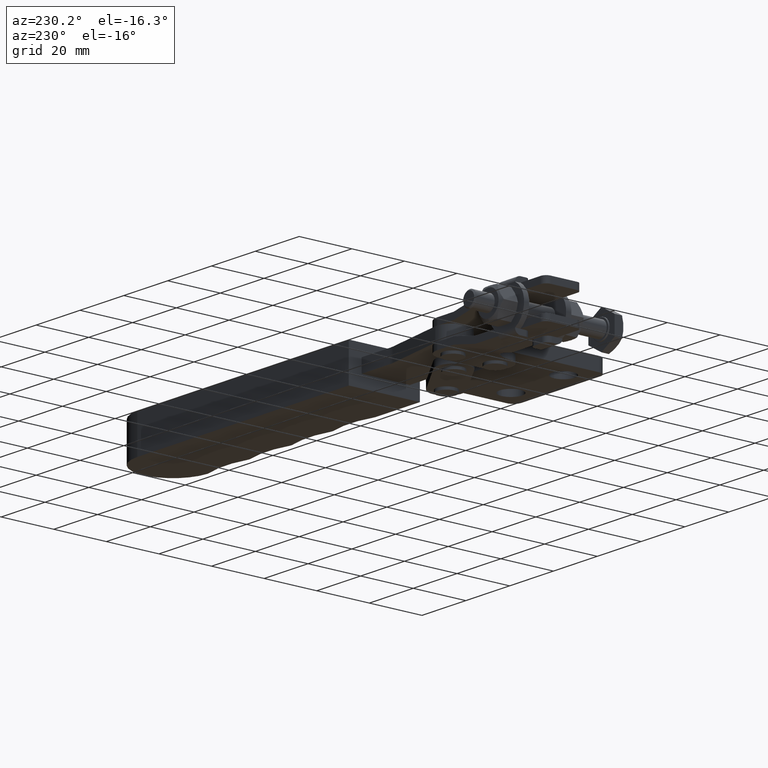
[diagram: clean part render]
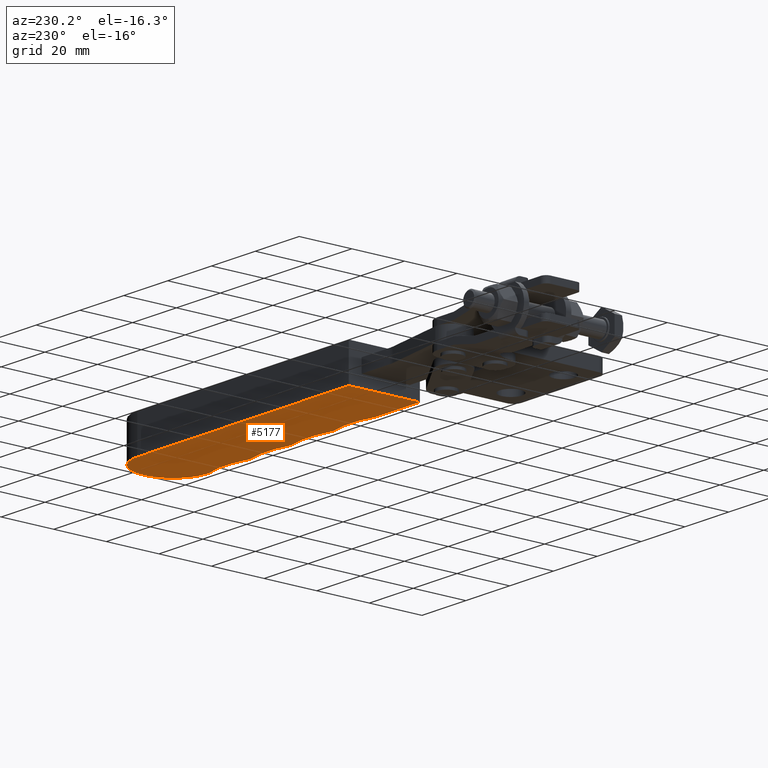
[diagram: same view with one face highlighted and labeled with its STEP entity id]
A machine part, auxiliary view. The second image highlights one B-rep face of the part: STEP entity #5177.
In plain terms, the highlighted planar face has unit normal (0, 0, 1).
Its self-contained STEP definition (entity closure, byte-faithful):
#47 = ORIENTED_EDGE ( 'NONE', *, *, #2918, .F. ) ;
#55 = ORIENTED_EDGE ( 'NONE', *, *, #1030, .F. ) ;
#103 = AXIS2_PLACEMENT_3D ( 'NONE', #3082, #7796, #7760 ) ;
#138 = AXIS2_PLACEMENT_3D ( 'NONE', #6977, #6308, #3063 ) ;
#144 = CARTESIAN_POINT ( 'NONE',  ( 43.17845472933616700, 14.31513059396301900, -7.000000000000000900 ) ) ;
#168 = CARTESIAN_POINT ( 'NONE',  ( 3.576293670548810400, 38.15530636546370900, -7.000000000000000900 ) ) ;
#263 = VERTEX_POINT ( 'NONE', #8348 ) ;
#271 = DIRECTION ( 'NONE',  ( 0.0000000000000000000, 0.0000000000000000000, 1.000000000000000000 ) ) ;
#383 = ORIENTED_EDGE ( 'NONE', *, *, #7321, .F. ) ;
#439 = CARTESIAN_POINT ( 'NONE',  ( 23.72323925246362500, 11.13196959416267600, -7.000000000000000900 ) ) ;
#497 = ORIENTED_EDGE ( 'NONE', *, *, #1561, .F. ) ;
#563 = AXIS2_PLACEMENT_3D ( 'NONE', #3355, #3676, #2658 ) ;
#590 = ORIENTED_EDGE ( 'NONE', *, *, #8298, .F. ) ;
#755 = CARTESIAN_POINT ( 'NONE',  ( 33.76915759846050900, -19.39636785245572200, -7.000000000000000900 ) ) ;
#822 = ORIENTED_EDGE ( 'NONE', *, *, #6570, .F. ) ;
#986 = EDGE_CURVE ( 'NONE', #2364, #2212, #2843, .T. ) ;
#1019 = ORIENTED_EDGE ( 'NONE', *, *, #5981, .F. ) ;
#1030 = EDGE_CURVE ( 'NONE', #1964, #2364, #4534, .T. ) ;
#1085 = DIRECTION ( 'NONE',  ( -0.9999993301781755500, 0.001157429565957367300, -0.0000000000000000000 ) ) ;
#1121 = ORIENTED_EDGE ( 'NONE', *, *, #4166, .F. ) ;
#1151 = AXIS2_PLACEMENT_3D ( 'NONE', #5390, #4047, #2829 ) ;
#1462 = DIRECTION ( 'NONE',  ( 0.9999993301781755500, -0.001157429565958516300, 0.0000000000000000000 ) ) ;
#1470 = DIRECTION ( 'NONE',  ( 0.9999993301781756600, -0.001157429565958478800, 0.0000000000000000000 ) ) ;
#1543 = ORIENTED_EDGE ( 'NONE', *, *, #6925, .F. ) ;
#1561 = EDGE_CURVE ( 'NONE', #7750, #6639, #8624, .T. ) ;
#1651 = ORIENTED_EDGE ( 'NONE', *, *, #986, .F. ) ;
#1669 = DIRECTION ( 'NONE',  ( 0.9999993301781755500, -0.001157429565958496800, 0.0000000000000000000 ) ) ;
#1751 = ORIENTED_EDGE ( 'NONE', *, *, #2453, .F. ) ;
#1799 = CARTESIAN_POINT ( 'NONE',  ( 3.576293670548810400, 38.15530636546370900, -7.000000000000000900 ) ) ;
#1823 = CARTESIAN_POINT ( 'NONE',  ( 81.97824938492850300, 11.37973204418876500, -7.000000000000000900 ) ) ;
#1964 = VERTEX_POINT ( 'NONE', #2402 ) ;
#2077 = AXIS2_PLACEMENT_3D ( 'NONE', #4759, #4788, #1462 ) ;
#2080 = DIRECTION ( 'NONE',  ( 0.9999993301781756600, -0.001157429565958487100, 0.0000000000000000000 ) ) ;
#2163 = ORIENTED_EDGE ( 'NONE', *, *, #7639, .F. ) ;
#2212 = VERTEX_POINT ( 'NONE', #2928 ) ;
#2364 = VERTEX_POINT ( 'NONE', #1823 ) ;
#2390 = DIRECTION ( 'NONE',  ( 0.9999993301781756600, -0.001157429565958547600, 0.0000000000000000000 ) ) ;
#2402 = CARTESIAN_POINT ( 'NONE',  ( 80.37191809346006700, 11.38159126076358200, -7.000000000000000900 ) ) ;
#2453 = EDGE_CURVE ( 'NONE', #263, #5465, #4298, .T. ) ;
#2548 = LINE ( 'NONE', #2607, #7914 ) ;
#2607 = CARTESIAN_POINT ( 'NONE',  ( 23.72323925246362500, 11.13196959416267600, -7.000000000000000900 ) ) ;
#2658 = DIRECTION ( 'NONE',  ( 0.9999993301781756600, -0.001157429565958484500, 0.0000000000000000000 ) ) ;
#2829 = DIRECTION ( 'NONE',  ( 0.9999993301781756600, -0.001157429565958473600, 0.0000000000000000000 ) ) ;
#2840 = ORIENTED_EDGE ( 'NONE', *, *, #6451, .F. ) ;
#2843 = CIRCLE ( 'NONE', #138, 31.99999999999996100 ) ;
#2918 = EDGE_CURVE ( 'NONE', #6639, #8344, #8540, .T. ) ;
#2928 = CARTESIAN_POINT ( 'NONE',  ( 99.73630956887225800, 11.17892842180075500, -7.000000000000000900 ) ) ;
#3011 = CIRCLE ( 'NONE', #5358, 32.00000000000000000 ) ;
#3063 = DIRECTION ( 'NONE',  ( 0.9999993301781756600, -0.001157429565958546100, 0.0000000000000000000 ) ) ;
#3082 = CARTESIAN_POINT ( 'NONE',  ( 71.76913214523121100, -19.44035017596214100, -7.000000000000000900 ) ) ;
#3300 = CARTESIAN_POINT ( 'NONE',  ( 100.2059568025393000, 38.04346426149196200, -7.000000000000000900 ) ) ;
#3355 = CARTESIAN_POINT ( 'NONE',  ( 81.17842927610686800, 14.27114827045659800, -7.000000000000000900 ) ) ;
#3460 = DIRECTION ( 'NONE',  ( 0.9999993301781755500, -0.001157429565958516300, 0.0000000000000000000 ) ) ;
#3504 = DIRECTION ( 'NONE',  ( -0.0000000000000000000, 0.0000000000000000000, -1.000000000000000000 ) ) ;
#3676 = DIRECTION ( 'NONE',  ( 0.0000000000000000000, 0.0000000000000000000, 1.000000000000000000 ) ) ;
#3729 = CARTESIAN_POINT ( 'NONE',  ( 3.576293670548810400, 38.15530636546370900, -7.000000000000000900 ) ) ;
#3750 = DIRECTION ( 'NONE',  ( 0.0000000000000000000, 0.0000000000000000000, 1.000000000000000000 ) ) ;
#3758 = VERTEX_POINT ( 'NONE', #7205 ) ;
#4023 = AXIS2_PLACEMENT_3D ( 'NONE', #5966, #6903, #6177 ) ;
#4047 = DIRECTION ( 'NONE',  ( 0.0000000000000000000, 0.0000000000000000000, 1.000000000000000000 ) ) ;
#4051 = CIRCLE ( 'NONE', #8512, 13.50000000000013500 ) ;
#4112 = CIRCLE ( 'NONE', #7221, 3.000000000000055500 ) ;
#4139 = CARTESIAN_POINT ( 'NONE',  ( 100.1903315033988700, 24.54347330408646100, -7.000000000000000900 ) ) ;
#4166 = EDGE_CURVE ( 'NONE', #7228, #7750, #2548, .T. ) ;
#4218 = LINE ( 'NONE', #168, #8607 ) ;
#4298 = CIRCLE ( 'NONE', #1151, 3.000000000000090200 ) ;
#4307 = VERTEX_POINT ( 'NONE', #5343 ) ;
#4534 = CIRCLE ( 'NONE', #563, 3.000000000000062200 ) ;
#4562 = DIRECTION ( 'NONE',  ( 0.9999993301781756600, -0.001157429565958544500, 0.0000000000000000000 ) ) ;
#4759 = CARTESIAN_POINT ( 'NONE',  ( 71.76913214523121100, -19.44035017596214100, -7.000000000000000900 ) ) ;
#4788 = DIRECTION ( 'NONE',  ( 0.0000000000000000000, 0.0000000000000000000, 1.000000000000000000 ) ) ;
#4996 = FACE_OUTER_BOUND ( 'NONE', #7503, .T. ) ;
#5155 = CARTESIAN_POINT ( 'NONE',  ( 23.72671154116149900, 14.13196758469720600, -7.000000000000000900 ) ) ;
#5177 = ADVANCED_FACE ( 'NONE', ( #4996 ), #8106, .F. ) ;
#5315 = CARTESIAN_POINT ( 'NONE',  ( 24.58749263178653500, 11.25811026151241600, -7.000000000000000900 ) ) ;
#5343 = CARTESIAN_POINT ( 'NONE',  ( 100.7187293448377700, 11.05381816686496200, -7.000000000000000900 ) ) ;
#5358 = AXIS2_PLACEMENT_3D ( 'NONE', #7354, #3504, #4562 ) ;
#5390 = CARTESIAN_POINT ( 'NONE',  ( 62.17835731220214500, 14.21996827324658200, -7.000000000000000900 ) ) ;
#5465 = VERTEX_POINT ( 'NONE', #8311 ) ;
#5966 = CARTESIAN_POINT ( 'NONE',  ( 100.6013076022957300, 14.05151930846985500, -7.000000000000000900 ) ) ;
#5981 = EDGE_CURVE ( 'NONE', #2212, #4307, #8501, .T. ) ;
#6177 = DIRECTION ( 'NONE',  ( 0.9999993301781756600, -0.001157429565958452200, 0.0000000000000000000 ) ) ;
#6179 = VECTOR ( 'NONE', #1085, 1000.000000000000100 ) ;
#6284 = LINE ( 'NONE', #3729, #6179 ) ;
#6308 = DIRECTION ( 'NONE',  ( -0.0000000000000000000, 0.0000000000000000000, -1.000000000000000000 ) ) ;
#6451 = EDGE_CURVE ( 'NONE', #8068, #7228, #4218, .T. ) ;
#6554 = AXIS2_PLACEMENT_3D ( 'NONE', #5155, #8213, #1470 ) ;
#6570 = EDGE_CURVE ( 'NONE', #4307, #8602, #4051, .T. ) ;
#6639 = VERTEX_POINT ( 'NONE', #5315 ) ;
#6903 = DIRECTION ( 'NONE',  ( 0.0000000000000000000, 0.0000000000000000000, 1.000000000000000000 ) ) ;
#6925 = EDGE_CURVE ( 'NONE', #5465, #1964, #8086, .T. ) ;
#6977 = CARTESIAN_POINT ( 'NONE',  ( 90.50966387902275300, -19.46204103600163300, -7.000000000000000900 ) ) ;
#7205 = CARTESIAN_POINT ( 'NONE',  ( 43.97827483815525100, 11.42371436769448700, -7.000000000000000900 ) ) ;
#7221 = AXIS2_PLACEMENT_3D ( 'NONE', #144, #271, #2080 ) ;
#7228 = VERTEX_POINT ( 'NONE', #7242 ) ;
#7242 = CARTESIAN_POINT ( 'NONE',  ( 3.545043072267930000, 11.15532445065293700, -7.000000000000000900 ) ) ;
#7321 = EDGE_CURVE ( 'NONE', #3758, #263, #3011, .T. ) ;
#7354 = CARTESIAN_POINT ( 'NONE',  ( 52.50968933225226500, -19.41805871249520300, -7.000000000000000900 ) ) ;
#7385 = DIRECTION ( 'NONE',  ( -0.001157429565958516300, -0.9999993301781755500, 0.0000000000000000000 ) ) ;
#7503 = EDGE_LOOP ( 'NONE', ( #1543, #1751, #383, #590, #47, #497, #1121, #2840, #2163, #822, #1019, #1651, #55 ) ) ;
#7639 = EDGE_CURVE ( 'NONE', #8602, #8068, #6284, .T. ) ;
#7750 = VERTEX_POINT ( 'NONE', #439 ) ;
#7760 = DIRECTION ( 'NONE',  ( 0.9999993301781756600, -0.001157429565958547600, 0.0000000000000000000 ) ) ;
#7796 = DIRECTION ( 'NONE',  ( -0.0000000000000000000, 0.0000000000000000000, -1.000000000000000000 ) ) ;
#7914 = VECTOR ( 'NONE', #3460, 1000.000000000000100 ) ;
#7976 = DIRECTION ( 'NONE',  ( -0.0000000000000000000, 0.0000000000000000000, -1.000000000000000000 ) ) ;
#8068 = VERTEX_POINT ( 'NONE', #1799 ) ;
#8086 = CIRCLE ( 'NONE', #103, 31.99999999999991800 ) ;
#8106 = PLANE ( 'NONE',  #2077 ) ;
#8193 = CARTESIAN_POINT ( 'NONE',  ( 42.37194354669226500, 11.42557358426921600, -7.000000000000000900 ) ) ;
#8213 = DIRECTION ( 'NONE',  ( 0.0000000000000000000, 0.0000000000000000000, 1.000000000000000000 ) ) ;
#8298 = EDGE_CURVE ( 'NONE', #8344, #3758, #4112, .T. ) ;
#8311 = CARTESIAN_POINT ( 'NONE',  ( 63.00042372646179000, 11.33479812045718500, -7.000000000000000900 ) ) ;
#8344 = VERTEX_POINT ( 'NONE', #8193 ) ;
#8348 = CARTESIAN_POINT ( 'NONE',  ( 61.34961434249166200, 11.33670881732599700, -7.000000000000000900 ) ) ;
#8418 = AXIS2_PLACEMENT_3D ( 'NONE', #755, #7976, #2390 ) ;
#8501 = CIRCLE ( 'NONE', #4023, 3.000000000000145700 ) ;
#8512 = AXIS2_PLACEMENT_3D ( 'NONE', #4139, #3750, #1669 ) ;
#8540 = CIRCLE ( 'NONE', #8418, 31.99999999999991800 ) ;
#8602 = VERTEX_POINT ( 'NONE', #3300 ) ;
#8607 = VECTOR ( 'NONE', #7385, 1000.000000000000100 ) ;
#8624 = CIRCLE ( 'NONE', #6554, 3.000000000000076400 ) ;